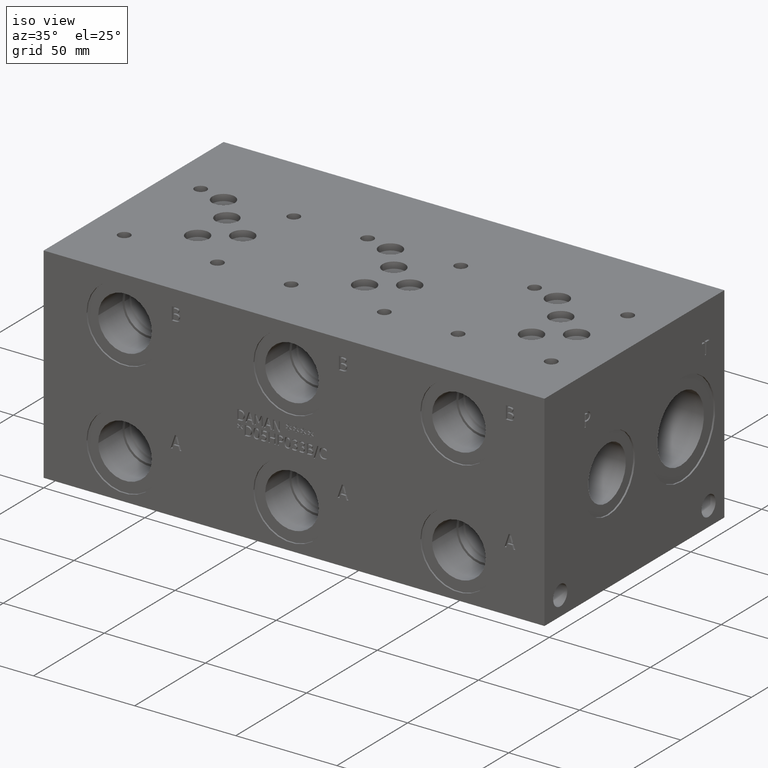
[diagram: clean part render]
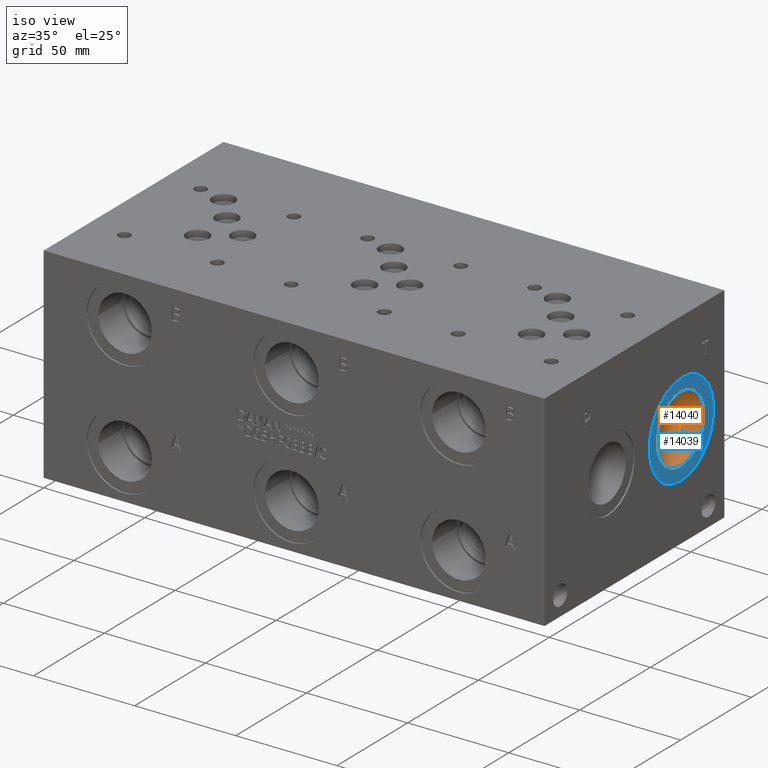
[diagram: same view with the hole feature highlighted: cylindrical wall and planar end face, labeled with their STEP entity ids]
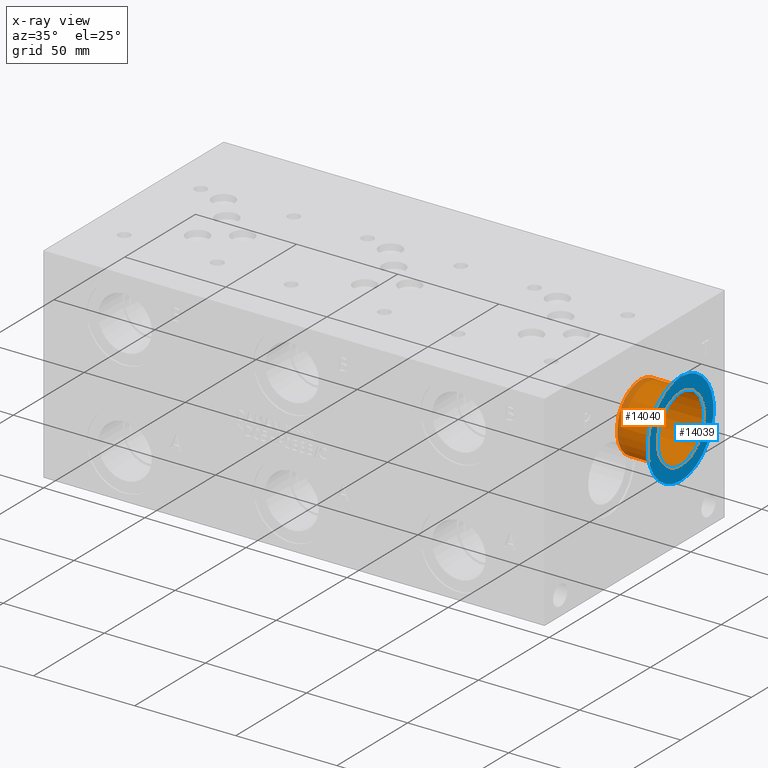
[diagram: x-ray of the same camera — body ghosted, the hole faces saturated]
A machine part, iso view. The highlighted faces form one hole feature of diameter 32.9946 mm: the cylindrical wall (entity #14040, orange) and its adjacent planar end face (entity #14039, blue) — they share a circular edge in the B-rep.
The next image is the same camera in x-ray (body ghosted, the hole faces saturated) — the bore reads through the body.
Wall:
#89=CYLINDRICAL_SURFACE('',#14703,16.4973);
#450=CIRCLE('',#14701,16.4973);
#451=CIRCLE('',#14702,16.4973);
#452=CIRCLE('',#14704,16.4973);
#453=CIRCLE('',#14705,16.4973);
#1772=FACE_OUTER_BOUND('',#2576,.T.);
#2576=EDGE_LOOP('',(#11795,#11796,#11797,#11798,#11799,#11800));
#3910=LINE('',#23835,#5161);
#5161=VECTOR('',#17235,16.4973);
#6371=VERTEX_POINT('',#23829);
#6372=VERTEX_POINT('',#23830);
#6373=VERTEX_POINT('',#23834);
#6374=VERTEX_POINT('',#23836);
#8259=EDGE_CURVE('',#6371,#6372,#450,.T.);
#8260=EDGE_CURVE('',#6372,#6371,#451,.T.);
#8261=EDGE_CURVE('',#6372,#6373,#3910,.T.);
#8262=EDGE_CURVE('',#6373,#6374,#452,.T.);
#8263=EDGE_CURVE('',#6374,#6373,#453,.T.);
#11795=ORIENTED_EDGE('',*,*,#8259,.F.);
#11796=ORIENTED_EDGE('',*,*,#8260,.F.);
#11797=ORIENTED_EDGE('',*,*,#8261,.T.);
#11798=ORIENTED_EDGE('',*,*,#8262,.T.);
#11799=ORIENTED_EDGE('',*,*,#8263,.T.);
#11800=ORIENTED_EDGE('',*,*,#8261,.F.);
#14040=ADVANCED_FACE('',(#1772),#89,.F.);
#14701=AXIS2_PLACEMENT_3D('',#23831,#17229,#17230);
#14702=AXIS2_PLACEMENT_3D('',#23832,#17231,#17232);
#14703=AXIS2_PLACEMENT_3D('',#23833,#17233,#17234);
#14704=AXIS2_PLACEMENT_3D('',#23837,#17236,#17237);
#14705=AXIS2_PLACEMENT_3D('',#23838,#17238,#17239);
#17229=DIRECTION('center_axis',(-1.,0.,0.));
#17230=DIRECTION('ref_axis',(0.,0.,1.));
#17231=DIRECTION('center_axis',(-1.,0.,0.));
#17232=DIRECTION('ref_axis',(0.,0.,1.));
#17233=DIRECTION('center_axis',(-1.,0.,0.));
#17234=DIRECTION('ref_axis',(0.,0.,-1.));
#17235=DIRECTION('',(-1.,0.,0.));
#17236=DIRECTION('center_axis',(-1.,0.,0.));
#17237=DIRECTION('ref_axis',(0.,0.,1.));
#17238=DIRECTION('center_axis',(-1.,0.,0.));
#17239=DIRECTION('ref_axis',(0.,0.,1.));
#23829=CARTESIAN_POINT('',(246.8626,97.2566,34.3027));
#23830=CARTESIAN_POINT('',(246.8626,97.2566,67.2973));
#23831=CARTESIAN_POINT('Origin',(246.8626,97.2566,50.8));
#23832=CARTESIAN_POINT('Origin',(246.8626,97.2566,50.8));
#23833=CARTESIAN_POINT('Origin',(236.9185,97.2566,50.8));
#23834=CARTESIAN_POINT('',(226.9744,97.2566,67.2973));
#23835=CARTESIAN_POINT('',(236.9185,97.2566,67.2973));
#23836=CARTESIAN_POINT('',(226.9744,97.2566,34.3027));
#23837=CARTESIAN_POINT('Origin',(226.9744,97.2566,50.8));
#23838=CARTESIAN_POINT('Origin',(226.9744,97.2566,50.8));
End face:
#448=CIRCLE('',#14698,23.2791);
#449=CIRCLE('',#14699,23.2791);
#450=CIRCLE('',#14701,16.4973);
#451=CIRCLE('',#14702,16.4973);
#1133=FACE_BOUND('',#2575,.T.);
#1771=FACE_OUTER_BOUND('',#2574,.T.);
#2574=EDGE_LOOP('',(#11791,#11792));
#2575=EDGE_LOOP('',(#11793,#11794));
#6369=VERTEX_POINT('',#23823);
#6370=VERTEX_POINT('',#23825);
#6371=VERTEX_POINT('',#23829);
#6372=VERTEX_POINT('',#23830);
#8257=EDGE_CURVE('',#6369,#6370,#448,.T.);
#8258=EDGE_CURVE('',#6370,#6369,#449,.T.);
#8259=EDGE_CURVE('',#6371,#6372,#450,.T.);
#8260=EDGE_CURVE('',#6372,#6371,#451,.T.);
#11791=ORIENTED_EDGE('',*,*,#8258,.F.);
#11792=ORIENTED_EDGE('',*,*,#8257,.F.);
#11793=ORIENTED_EDGE('',*,*,#8259,.T.);
#11794=ORIENTED_EDGE('',*,*,#8260,.T.);
#12898=PLANE('',#14700);
#14039=ADVANCED_FACE('',(#1771,#1133),#12898,.F.);
#14698=AXIS2_PLACEMENT_3D('',#23826,#17223,#17224);
#14699=AXIS2_PLACEMENT_3D('',#23827,#17225,#17226);
#14700=AXIS2_PLACEMENT_3D('',#23828,#17227,#17228);
#14701=AXIS2_PLACEMENT_3D('',#23831,#17229,#17230);
#14702=AXIS2_PLACEMENT_3D('',#23832,#17231,#17232);
#17223=DIRECTION('center_axis',(-1.,0.,0.));
#17224=DIRECTION('ref_axis',(0.,0.,1.));
#17225=DIRECTION('center_axis',(-1.,0.,0.));
#17226=DIRECTION('ref_axis',(0.,0.,1.));
#17227=DIRECTION('center_axis',(-1.,0.,0.));
#17228=DIRECTION('ref_axis',(0.,0.,1.));
#17229=DIRECTION('center_axis',(-1.,0.,0.));
#17230=DIRECTION('ref_axis',(0.,0.,1.));
#17231=DIRECTION('center_axis',(-1.,0.,0.));
#17232=DIRECTION('ref_axis',(0.,0.,1.));
#23823=CARTESIAN_POINT('',(246.8626,97.2566,74.0791));
#23825=CARTESIAN_POINT('',(246.8626,97.2566,27.5209));
#23826=CARTESIAN_POINT('Origin',(246.8626,97.2566,50.8));
#23827=CARTESIAN_POINT('Origin',(246.8626,97.2566,50.8));
#23828=CARTESIAN_POINT('Origin',(246.8626,97.2566,34.3027));
#23829=CARTESIAN_POINT('',(246.8626,97.2566,34.3027));
#23830=CARTESIAN_POINT('',(246.8626,97.2566,67.2973));
#23831=CARTESIAN_POINT('Origin',(246.8626,97.2566,50.8));
#23832=CARTESIAN_POINT('Origin',(246.8626,97.2566,50.8));